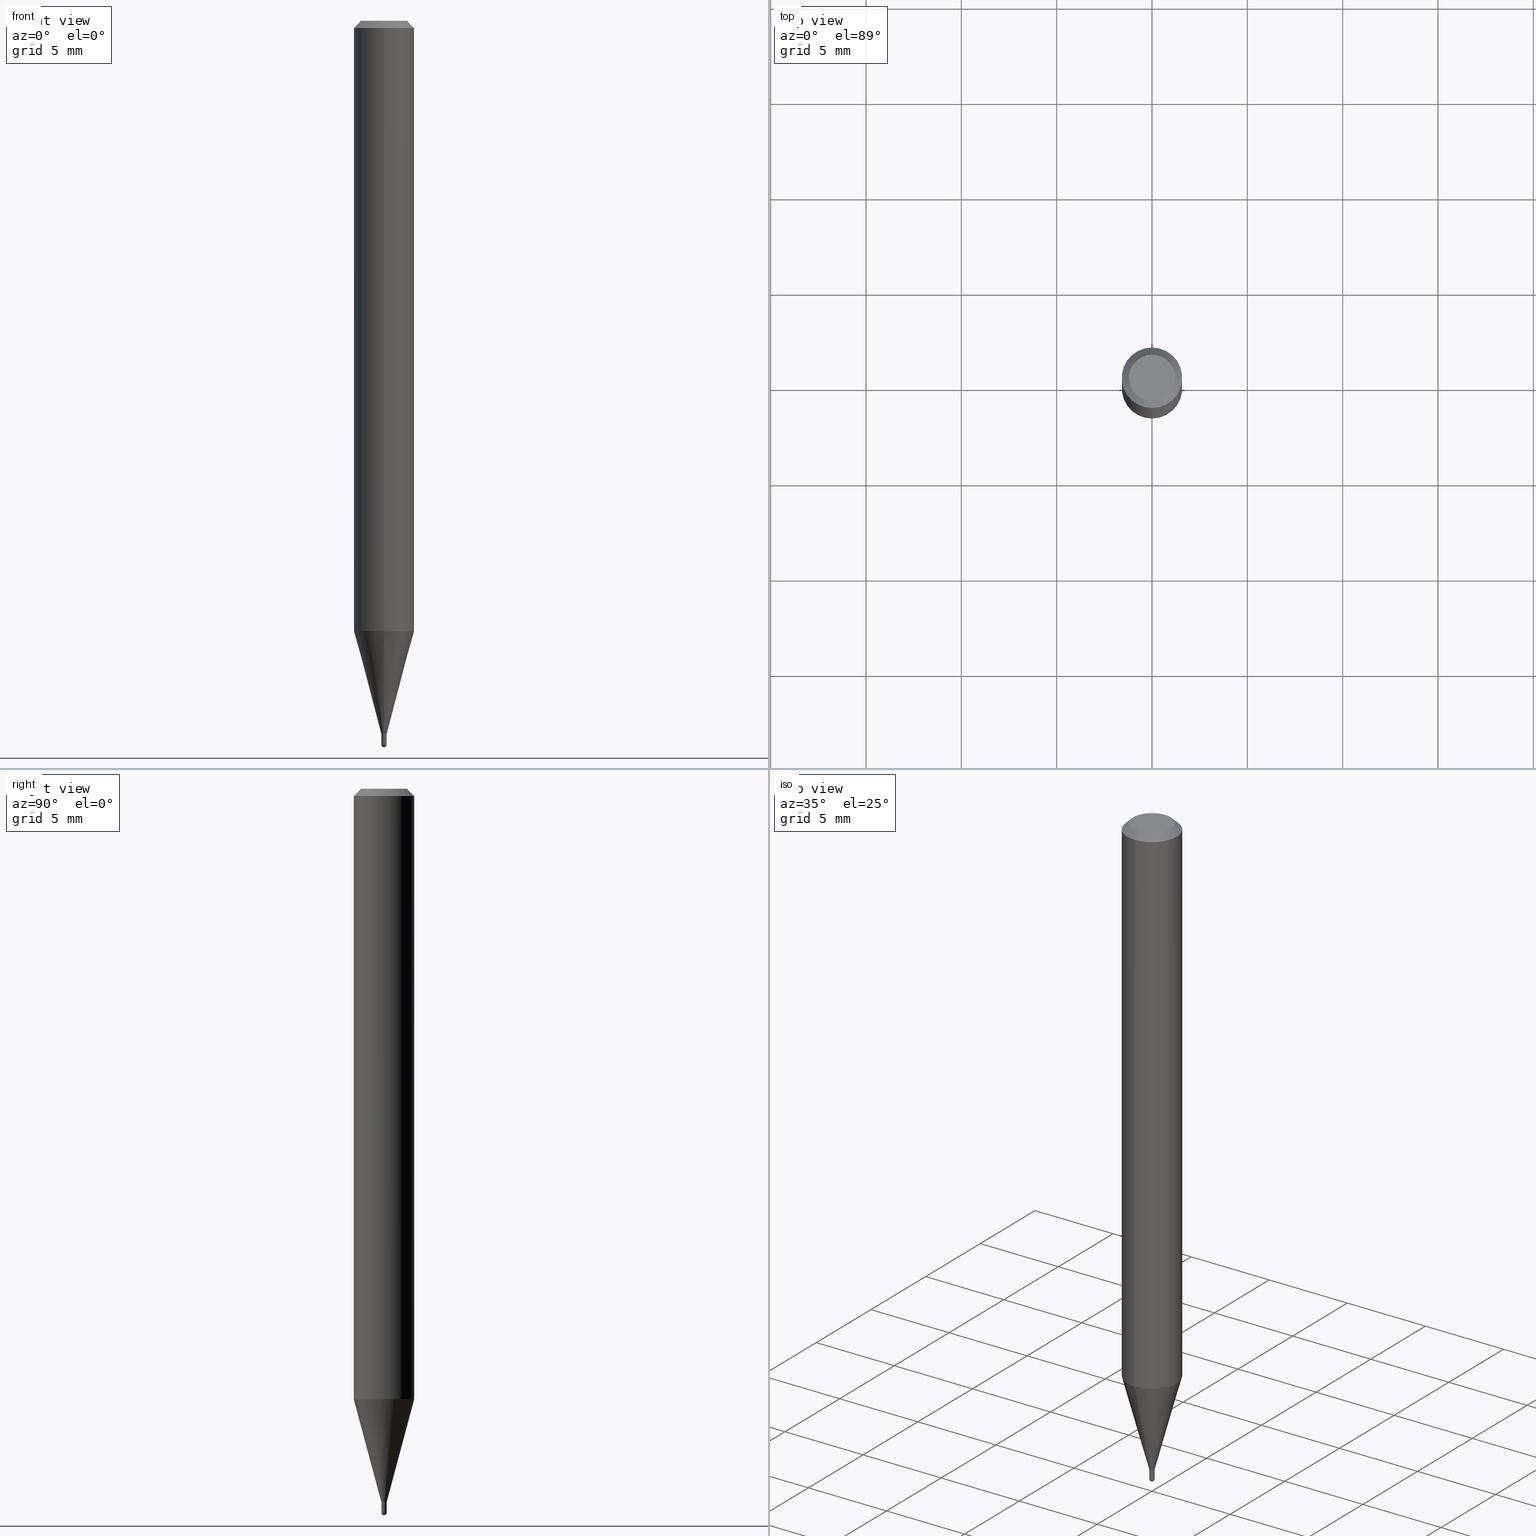
[diagram: canonical four-view strip — front | top / right | iso, engineering-drawing reading convention]
A machine part, canonical four-view strip (front | top / right | iso — engineering-drawing reading convention). The complete STEP part file that produces these views, byte-faithful:
ISO-10303-21;
HEADER;
FILE_DESCRIPTION (( 'STEP AP203' ),
    '1' );
FILE_NAME ('03035.STEP',
    '2024-03-08T18:02:09',
    ( '' ),
    ( '' ),
    'SwSTEP 2.0',
    'SolidWorks 2023',
    '' );
FILE_SCHEMA (( 'CONFIG_CONTROL_DESIGN' ));
ENDSEC;

DATA;
#1 = LINE ( 'NONE', #311, #72 ) ;
#2 = PERSON_AND_ORGANIZATION_ROLE ( 'design_supplier' ) ;
#3 = AXIS2_PLACEMENT_3D ( 'NONE', #491, #133, #374 ) ;
#4 = EDGE_LOOP ( 'NONE', ( #199, #367, #445, #131 ) ) ;
#5 = ORIENTED_EDGE ( 'NONE', *, *, #408, .T. ) ;
#6 = COORDINATED_UNIVERSAL_TIME_OFFSET ( 5, 0, .BEHIND. ) ;
#7 = ORIENTED_EDGE ( 'NONE', *, *, #48, .F. ) ;
#8 = DIRECTION ( 'NONE',  ( 1.000000000000000000, -6.982962677686247778E-15, 0.000000000000000000 ) ) ;
#9 = CIRCLE ( 'NONE', #176, 0.005499999999999922486 ) ;
#10 = ORIENTED_EDGE ( 'NONE', *, *, #457, .T. ) ;
#11 = CARTESIAN_POINT ( 'NONE',  ( -4.287811248607203282E-16, -0.06250000000000005551, -0.01499999999999954321 ) ) ;
#12 = ADVANCED_FACE ( 'NONE', ( #57 ), #96, .T. ) ;
#13 = VERTEX_POINT ( 'NONE', #219 ) ;
#14 = CARTESIAN_POINT ( 'NONE',  ( 3.602159535091854458E-29, -5.142974948539348229E-15, -1.473000000000000087 ) ) ;
#15 = ORIENTED_EDGE ( 'NONE', *, *, #77, .T. ) ;
#16 = CARTESIAN_POINT ( 'NONE',  ( 3.602159535091854458E-29, -5.142974948539348229E-15, -1.473000000000000087 ) ) ;
#17 = AXIS2_PLACEMENT_3D ( 'NONE', #101, #61, #342 ) ;
#18 = AXIS2_PLACEMENT_3D ( 'NONE', #411, #213, #170 ) ;
#19 = DIRECTION ( 'NONE',  ( -2.445457932852582401E-29, 3.491496910074235164E-15, 1.000000000000000000 ) ) ;
#20 = APPROVAL_PERSON_ORGANIZATION ( #234, #417, #152 ) ;
#21 = EDGE_CURVE ( 'NONE', #276, #475, #496, .T. ) ;
#22 = CARTESIAN_POINT ( 'NONE',  ( 0.000000000000000000, 0.000000000000000000, 0.000000000000000000 ) ) ;
#23 = CARTESIAN_POINT ( 'NONE',  ( -3.491481338839505335E-17, -0.005000000000005176519, -1.483000000000000096 ) ) ;
#24 = DIRECTION ( 'NONE',  ( -2.445457932852582401E-29, 3.491496910074235164E-15, 1.000000000000000000 ) ) ;
#25 = CARTESIAN_POINT ( 'NONE',  ( -3.840629472723789408E-17, -0.005500000000005065073, -1.473000000000000087 ) ) ;
#26 = CARTESIAN_POINT ( 'NONE',  ( 3.668186899278815115E-31, -5.237245365111268929E-17, -0.01499999999999976179 ) ) ;
#27 = AXIS2_PLACEMENT_3D ( 'NONE', #447, #444, #332 ) ;
#28 = FACE_OUTER_BOUND ( 'NONE', #165, .T. ) ;
#29 = EDGE_CURVE ( 'NONE', #322, #13, #169, .T. ) ;
#30 = CARTESIAN_POINT ( 'NONE',  ( -5.856612098317437321E-45, 8.361764383706284746E-31, 2.394893823213636661E-16 ) ) ;
#31 = EDGE_CURVE ( 'NONE', #43, #124, #202, .T. ) ;
#32 = DIRECTION ( 'NONE',  ( 1.000000000000000000, -6.982962677686265922E-15, 4.876176775795936353E-29 ) ) ;
#33 = DIRECTION ( 'NONE',  ( -6.982962677686266711E-15, -1.000000000000000000, 3.491496910074236347E-15 ) ) ;
#34 = CARTESIAN_POINT ( 'NONE',  ( 0.000000000000000000, 0.000000000000000000, 0.000000000000000000 ) ) ;
#35 = CARTESIAN_POINT ( 'NONE',  ( -4.364351673553608052E-16, -0.06250000000000439926, -1.260273103968574615 ) ) ;
#36 = CIRCLE ( 'NONE', #221, 0.005499999999999923353 ) ;
#37 = DIRECTION ( 'NONE',  ( -2.445457932852582401E-29, 3.491496910074235164E-15, 1.000000000000000000 ) ) ;
#38 = PERSON_AND_ORGANIZATION_ROLE ( 'design_owner' ) ;
#39 = LINE ( 'NONE', #356, #466 ) ;
#40 = PERSON_AND_ORGANIZATION ( #310, #130 ) ;
#41 = VECTOR ( 'NONE', #430, 39.37007874015748143 ) ;
#42 = AXIS2_PLACEMENT_3D ( 'NONE', #162, #88, #292 ) ;
#43 = VERTEX_POINT ( 'NONE', #379 ) ;
#44 = APPROVAL_STATUS ( 'not_yet_approved' ) ;
#45 = ORIENTED_EDGE ( 'NONE', *, *, #344, .T. ) ;
#46 = DIRECTION ( 'NONE',  ( -2.445457932852582401E-29, 3.491496910074235164E-15, 1.000000000000000000 ) ) ;
#47 = ORIENTED_EDGE ( 'NONE', *, *, #31, .T. ) ;
#48 = EDGE_CURVE ( 'NONE', #322, #121, #79, .T. ) ;
#49 = PLANE ( 'NONE',  #27 ) ;
#50 = CONICAL_SURFACE ( 'NONE', #279, 0.005499999999999922486, 0.2617993877991506291 ) ;
#51 = LOCAL_TIME ( 13, 2, 9.000000000000000000, #468 ) ;
#52 = ORIENTED_EDGE ( 'NONE', *, *, #432, .T. ) ;
#53 = DIRECTION ( 'NONE',  ( -2.445457932852582401E-29, 3.491496910074235164E-15, 1.000000000000000000 ) ) ;
#54 = ORIENTED_EDGE ( 'NONE', *, *, #48, .T. ) ;
#55 = FACE_OUTER_BOUND ( 'NONE', #410, .T. ) ;
#56 = EDGE_CURVE ( 'NONE', #461, #479, #339, .T. ) ;
#57 = FACE_OUTER_BOUND ( 'NONE', #431, .T. ) ;
#58 = DIRECTION ( 'NONE',  ( -2.445468806185136597E-29, 3.491481338843145583E-15, 1.000000000000000000 ) ) ;
#59 = VECTOR ( 'NONE', #46, 39.37007874015748143 ) ;
#60 = VERTEX_POINT ( 'NONE', #25 ) ;
#61 = DIRECTION ( 'NONE',  ( -2.445457932852582401E-29, 3.491496910074235164E-15, 1.000000000000000000 ) ) ;
#62 = DIRECTION ( 'NONE',  ( 2.445457932852582401E-29, -3.491496910074235164E-15, -1.000000000000000000 ) ) ;
#63 = ORIENTED_EDGE ( 'NONE', *, *, #501, .T. ) ;
#64 = DIRECTION ( 'NONE',  ( 5.024295867788190974E-15, 0.7071067811865681119, 0.7071067811865270336 ) ) ;
#65 = ORIENTED_EDGE ( 'NONE', *, *, #432, .F. ) ;
#66 = CIRCLE ( 'NONE', #231, 0.004999999999999999237 ) ;
#67 = DIRECTION ( 'NONE',  ( -2.445457932852582401E-29, 3.491496910074235164E-15, 1.000000000000000000 ) ) ;
#68 =( NAMED_UNIT ( * ) SI_UNIT ( $, .STERADIAN. ) SOLID_ANGLE_UNIT ( ) );
#69 = CARTESIAN_POINT ( 'NONE',  ( 3.602159535091854458E-29, -5.142974948539348229E-15, -1.473000000000000087 ) ) ;
#70 = DATE_TIME_ROLE ( 'classification_date' ) ;
#71 = DIRECTION ( 'NONE',  ( -6.982962677686266711E-15, -1.000000000000000000, 3.491496910074236347E-15 ) ) ;
#72 = VECTOR ( 'NONE', #350, 39.37007874015748143 ) ;
#73 = AXIS2_PLACEMENT_3D ( 'NONE', #422, #304, #383 ) ;
#74 = APPROVAL_STATUS ( 'not_yet_approved' ) ;
#75 = DIRECTION ( 'NONE',  ( -1.807323732225332900E-15, -0.2588190451025185190, 0.9659258262890689783 ) ) ;
#76 = PERSON_AND_ORGANIZATION ( #310, #130 ) ;
#77 = EDGE_CURVE ( 'NONE', #406, #261, #448, .T. ) ;
#78 = VERTEX_POINT ( 'NONE', #419 ) ;
#79 = CIRCLE ( 'NONE', #17, 0.004999999999999999237 ) ;
#80 = AXIS2_PLACEMENT_3D ( 'NONE', #338, #252, #125 ) ;
#81 = CC_DESIGN_APPROVAL ( #301, ( #326 ) ) ;
#82 = ORIENTED_EDGE ( 'NONE', *, *, #320, .T. ) ;
#83 = DIRECTION ( 'NONE',  ( 1.000000000000000000, -6.982962677686265922E-15, 4.883557194083112901E-29 ) ) ;
#84 = ORIENTED_EDGE ( 'NONE', *, *, #136, .F. ) ;
#85 = EDGE_CURVE ( 'NONE', #479, #475, #497, .T. ) ;
#86 = DIRECTION ( 'NONE',  ( -1.000000000000000000, 6.982962677686265922E-15, -4.876176775795935793E-29 ) ) ;
#87 = ORIENTED_EDGE ( 'NONE', *, *, #275, .T. ) ;
#88 = DIRECTION ( 'NONE',  ( -2.445468806185136597E-29, 3.491481338843145583E-15, 1.000000000000000000 ) ) ;
#89 = VECTOR ( 'NONE', #19, 39.37007874015748143 ) ;
#90 = ORIENTED_EDGE ( 'NONE', *, *, #346, .F. ) ;
#91 = DIRECTION ( 'NONE',  ( -6.982962677686265922E-15, -1.000000000000000000, 0.000000000000000000 ) ) ;
#92 = ORIENTED_EDGE ( 'NONE', *, *, #29, .F. ) ;
#93 = DIRECTION ( 'NONE',  ( -2.445457932852582401E-29, 3.491496910074235164E-15, 1.000000000000000000 ) ) ;
#94 = ORIENTED_EDGE ( 'NONE', *, *, #120, .T. ) ;
#95 = DIRECTION ( 'NONE',  ( -2.445468806185136597E-29, 3.491481338843145583E-15, 1.000000000000000000 ) ) ;
#96 = CONICAL_SURFACE ( 'NONE', #388, 0.06250000000000000000, 0.7853981633974483900 ) ;
#97 = AXIS2_PLACEMENT_3D ( 'NONE', #16, #327, #167 ) ;
#98 = ORIENTED_EDGE ( 'NONE', *, *, #85, .F. ) ;
#99 = CC_DESIGN_APPROVAL ( #417, ( #102 ) ) ;
#100 = ADVANCED_FACE ( 'NONE', ( #463 ), #182, .T. ) ;
#101 = CARTESIAN_POINT ( 'NONE',  ( 3.626614114420379901E-29, -5.177889917640090482E-15, -1.483000000000000096 ) ) ;
#102 = PRODUCT_DEFINITION ( 'UNKNOWN', '', #326, #123 ) ;
#103 = APPLICATION_PROTOCOL_DEFINITION ( 'international standard', 'config_control_design', 1994, #155 ) ;
#104 = ORIENTED_EDGE ( 'NONE', *, *, #136, .T. ) ;
#105 = CARTESIAN_POINT ( 'NONE',  ( 3.081944859660698736E-29, -4.400239648355943616E-15, -1.260273103968574837 ) ) ;
#106 = APPROVAL_PERSON_ORGANIZATION ( #40, #465, #111 ) ;
#107 = CARTESIAN_POINT ( 'NONE',  ( 3.840629472727447874E-16, 0.04749999999999999362, 7.364327909283752044E-17 ) ) ;
#108 = CARTESIAN_POINT ( 'NONE',  ( 0.000000000000000000, 0.000000000000000000, 0.000000000000000000 ) ) ;
#109 = CALENDAR_DATE ( 2024, 8, 3 ) ;
#110 = DIRECTION ( 'NONE',  ( -2.445457932852582401E-29, 3.491496910074235164E-15, 1.000000000000000000 ) ) ;
#111 = APPROVAL_ROLE ( '' ) ;
#112 = CARTESIAN_POINT ( 'NONE',  ( 3.907985046684152439E-17, 0.005499999999994708774, -1.494500000000000162 ) ) ;
#113 = VECTOR ( 'NONE', #75, 39.37007874015748854 ) ;
#114 = CIRCLE ( 'NONE', #289, 0.005499999999999923353 ) ;
#115 = EDGE_LOOP ( 'NONE', ( #285, #45, #216, #161 ) ) ;
#116 = ORIENTED_EDGE ( 'NONE', *, *, #346, .T. ) ;
#117 = AXIS2_PLACEMENT_3D ( 'NONE', #455, #460, #171 ) ;
#118 = CIRCLE ( 'NONE', #97, 0.005499999999999922486 ) ;
#119 = CARTESIAN_POINT ( 'NONE',  ( 3.626630239572558053E-29, -5.177866825504385478E-15, -1.483000000000000096 ) ) ;
#120 = EDGE_CURVE ( 'NONE', #60, #477, #9, .T. ) ;
#121 = VERTEX_POINT ( 'NONE', #435 ) ;
#122 = CARTESIAN_POINT ( 'NONE',  ( 3.907985046684109298E-17, 0.005499999999994729591, -1.482500000000000151 ) ) ;
#123 = DESIGN_CONTEXT ( 'detailed design', #337, 'design' ) ;
#124 = VERTEX_POINT ( 'NONE', #180 ) ;
#125 = DIRECTION ( 'NONE',  ( -6.982962677686265922E-15, -1.000000000000000000, 3.483106191921935554E-15 ) ) ;
#126 = EDGE_LOOP ( 'NONE', ( #94, #63, #421, #84 ) ) ;
#127 = FACE_OUTER_BOUND ( 'NONE', #458, .T. ) ;
#128 = VECTOR ( 'NONE', #217, 39.37007874015748143 ) ;
#129 = CONICAL_SURFACE ( 'NONE', #403, 0.005499999999999922486, 0.2617993877991506291 ) ;
#130 = ORGANIZATION ( 'UNSPECIFIED', 'UNSPECIFIED', '' ) ;
#131 = ORIENTED_EDGE ( 'NONE', *, *, #191, .F. ) ;
#132 = EDGE_CURVE ( 'NONE', #443, #477, #1, .T. ) ;
#133 = DIRECTION ( 'NONE',  ( -2.445457932852582401E-29, 3.491496910074235164E-15, 1.000000000000000000 ) ) ;
#134 = CARTESIAN_POINT ( 'NONE',  ( 3.668186899278815115E-31, -5.237245365111268929E-17, -0.01499999999999976179 ) ) ;
#135 = FACE_OUTER_BOUND ( 'NONE', #4, .T. ) ;
#136 = EDGE_CURVE ( 'NONE', #60, #276, #267, .T. ) ;
#137 = ORIENTED_EDGE ( 'NONE', *, *, #29, .T. ) ;
#138 = CARTESIAN_POINT ( 'NONE',  ( 3.626614114420379901E-29, -5.177889917640090482E-15, -1.483000000000000096 ) ) ;
#139 = CC_DESIGN_DATE_AND_TIME_ASSIGNMENT ( #360, #197, ( #102 ) ) ;
#140 = AXIS2_PLACEMENT_3D ( 'NONE', #343, #62, #378 ) ;
#141 = DIRECTION ( 'NONE',  ( 1.000000000000000000, -6.982962677686247778E-15, 0.000000000000000000 ) ) ;
#142 = ORIENTED_EDGE ( 'NONE', *, *, #457, .F. ) ;
#143 = CARTESIAN_POINT ( 'NONE',  ( 4.440892098500935790E-16, 0.06249999999999995143, -0.01499999999999997863 ) ) ;
#144 = DIRECTION ( 'NONE',  ( -2.445457932852582401E-29, 3.491496910074235164E-15, 1.000000000000000000 ) ) ;
#145 = DIRECTION ( 'NONE',  ( 7.105427357601001070E-15, 1.000000000000000000, 0.000000000000000000 ) ) ;
#146 = AXIS2_PLACEMENT_3D ( 'NONE', #26, #177, #299 ) ;
#147 = CARTESIAN_POINT ( 'NONE',  ( 3.654282789384638190E-29, -5.218692416640612921E-15, -1.494500000000000162 ) ) ;
#148 = AXIS2_PLACEMENT_3D ( 'NONE', #503, #144, #33 ) ;
#149 = CARTESIAN_POINT ( 'NONE',  ( -4.364351673553912750E-16, -0.06250000000000005551, -0.01499999999999954321 ) ) ;
#150 = CARTESIAN_POINT ( 'NONE',  ( 3.625391385453952956E-29, -5.176144169185053606E-15, -1.482500000000000151 ) ) ;
#151 = DIRECTION ( 'NONE',  ( -2.445457932852582401E-29, 3.491496910074235164E-15, 1.000000000000000000 ) ) ;
#152 = APPROVAL_ROLE ( '' ) ;
#153 = DIRECTION ( 'NONE',  ( -2.445468806185136877E-29, 3.491481338843145188E-15, 1.000000000000000000 ) ) ;
#154 = AXIS2_PLACEMENT_3D ( 'NONE', #108, #506, #382 ) ;
#155 = APPLICATION_CONTEXT ( 'configuration controlled 3d designs of mechanical parts and assemblies' ) ;
#156 = ORIENTED_EDGE ( 'NONE', *, *, #320, .F. ) ;
#157 = VERTEX_POINT ( 'NONE', #469 ) ;
#158 = ORIENTED_EDGE ( 'NONE', *, *, #501, .F. ) ;
#159 = CIRCLE ( 'NONE', #381, 0.005499999999999997946 ) ;
#160 = DIRECTION ( 'NONE',  ( -2.445457932852582401E-29, 3.491496910074235164E-15, 1.000000000000000000 ) ) ;
#161 = ORIENTED_EDGE ( 'NONE', *, *, #408, .F. ) ;
#162 = CARTESIAN_POINT ( 'NONE',  ( 3.654753130843686882E-29, -5.218018860901081637E-15, -1.494500000000000162 ) ) ;
#163 = ORIENTED_EDGE ( 'NONE', *, *, #183, .T. ) ;
#164 = CARTESIAN_POINT ( 'NONE',  ( -3.840629472723740105E-17, -0.005500000000005144871, -1.494500000000000162 ) ) ;
#165 = EDGE_LOOP ( 'NONE', ( #142, #278, #90, #65 ) ) ;
#166 = CC_DESIGN_PERSON_AND_ORGANIZATION_ASSIGNMENT ( #232, #390, ( #326 ) ) ;
#167 = DIRECTION ( 'NONE',  ( -6.982962677686265922E-15, -1.000000000000000000, 0.000000000000000000 ) ) ;
#168 = CLOSED_SHELL ( 'NONE', ( #100, #385, #358, #511, #452 ) ) ;
#169 = LINE ( 'NONE', #23, #288 ) ;
#170 = DIRECTION ( 'NONE',  ( -6.982962677686265922E-15, -1.000000000000000000, 0.000000000000000000 ) ) ;
#171 = DIRECTION ( 'NONE',  ( 1.000000000000000000, -6.982962677686245411E-15, 0.000000000000000000 ) ) ;
#172 = DIRECTION ( 'NONE',  ( -6.982962677686265922E-15, -1.000000000000000000, 0.000000000000000000 ) ) ;
#173 = EDGE_CURVE ( 'NONE', #157, #276, #473, .T. ) ;
#174 = CARTESIAN_POINT ( 'NONE',  ( 3.654753130843686882E-29, -5.218018860901081637E-15, -1.494500000000000162 ) ) ;
#175 = DIRECTION ( 'NONE',  ( 1.000000000000000000, -7.105427357601001070E-15, 4.926315508542082329E-29 ) ) ;
#176 = AXIS2_PLACEMENT_3D ( 'NONE', #222, #348, #474 ) ;
#177 = DIRECTION ( 'NONE',  ( -2.445457932852582401E-29, 3.491496910074235164E-15, 1.000000000000000000 ) ) ;
#178 = LOCAL_TIME ( 13, 2, 9.000000000000000000, #6 ) ;
#179 = SPHERICAL_SURFACE ( 'NONE', #73, 0.005499999999999853964 ) ;
#180 = CARTESIAN_POINT ( 'NONE',  ( -0.005499999999999999681, -5.158862992735928801E-15, -1.483000000000000096 ) ) ;
#181 =( LENGTH_UNIT ( ) NAMED_UNIT ( * ) SI_UNIT ( $, .METRE. ) );
#182 = CYLINDRICAL_SURFACE ( 'NONE', #414, 0.005499999999999999681 ) ;
#183 = EDGE_CURVE ( 'NONE', #261, #43, #425, .T. ) ;
#184 = CYLINDRICAL_SURFACE ( 'NONE', #434, 0.06250000000000000000 ) ;
#185 = CARTESIAN_POINT ( 'NONE',  ( 3.626614114420379901E-29, -5.177889917640090482E-15, -1.483000000000000096 ) ) ;
#186 = AXIS2_PLACEMENT_3D ( 'NONE', #386, #227, #220 ) ;
#187 = SECURITY_CLASSIFICATION_LEVEL ( 'unclassified' ) ;
#188 = CARTESIAN_POINT ( 'NONE',  ( 3.667497697089131858E-29, -5.238232341874015890E-15, -1.500000000000000222 ) ) ;
#189 = PRODUCT_DEFINITION_SHAPE ( 'NONE', 'NONE',  #102 ) ;
#190 = APPROVAL_DATE_TIME ( #433, #417 ) ;
#191 = EDGE_CURVE ( 'NONE', #13, #60, #389, .T. ) ;
#192 = CARTESIAN_POINT ( 'NONE',  ( 3.654753130843686882E-29, -5.218018860901081637E-15, -1.494500000000000162 ) ) ;
#193 = APPROVAL_DATE_TIME ( #274, #465 ) ;
#194 = AXIS2_PLACEMENT_3D ( 'NONE', #256, #175, #145 ) ;
#195 = DATE_AND_TIME ( #429, #215 ) ;
#196 = ORIENTED_EDGE ( 'NONE', *, *, #173, .T. ) ;
#197 = DATE_TIME_ROLE ( 'creation_date' ) ;
#198 = DIMENSIONAL_EXPONENTS ( 1.000000000000000000, 0.000000000000000000, 0.000000000000000000, 0.000000000000000000, 0.000000000000000000, 0.000000000000000000, 0.000000000000000000 ) ;
#199 = ORIENTED_EDGE ( 'NONE', *, *, #243, .T. ) ;
#200 = CYLINDRICAL_SURFACE ( 'NONE', #3, 0.06250000000000000000 ) ;
#201 = ORIENTED_EDGE ( 'NONE', *, *, #409, .F. ) ;
#202 = CIRCLE ( 'NONE', #117, 0.005499999999999999681 ) ;
#203 = CARTESIAN_POINT ( 'NONE',  ( -3.491481338839505335E-17, -0.005000000000005176519, -1.483000000000000096 ) ) ;
#204 = EDGE_CURVE ( 'NONE', #416, #461, #440, .T. ) ;
#205 = ORIENTED_EDGE ( 'NONE', *, *, #56, .T. ) ;
#206 = DIRECTION ( 'NONE',  ( -6.982962677686265922E-15, -1.000000000000000000, 0.000000000000000000 ) ) ;
#207 = UNCERTAINTY_MEASURE_WITH_UNIT (LENGTH_MEASURE( 1.000000000000000082E-05 ), #349, 'distance_accuracy_value', 'NONE');
#208 = PRODUCT_RELATED_PRODUCT_CATEGORY ( 'detail', '', ( #483 ) ) ;
#209 = ORIENTED_EDGE ( 'NONE', *, *, #173, .F. ) ;
#210 = FACE_OUTER_BOUND ( 'NONE', #329, .T. ) ;
#211 = CARTESIAN_POINT ( 'NONE',  ( -4.364351673553916201E-16, -0.06250000000000000000, 2.182185568796396731E-16 ) ) ;
#212 = AXIS2_PLACEMENT_3D ( 'NONE', #30, #67, #71 ) ;
#213 = DIRECTION ( 'NONE',  ( -2.445457932852582401E-29, 3.491496910074235164E-15, 1.000000000000000000 ) ) ;
#214 = AXIS2_PLACEMENT_3D ( 'NONE', #34, #95, #32 ) ;
#215 = LOCAL_TIME ( 13, 2, 9.000000000000000000, #395 ) ;
#216 = ORIENTED_EDGE ( 'NONE', *, *, #191, .T. ) ;
#217 = DIRECTION ( 'NONE',  ( 4.937700262164548042E-15, 0.7071067811865451302, -0.7071067811865499042 ) ) ;
#218 = CARTESIAN_POINT ( 'NONE',  ( 2.415845301584673606E-16, 0.005499999999994779898, -1.473000000000000087 ) ) ;
#219 = CARTESIAN_POINT ( 'NONE',  ( -3.840629472723779548E-17, -0.005500000000005117115, -1.482500000000000151 ) ) ;
#220 = DIRECTION ( 'NONE',  ( -6.982962677686265922E-15, -1.000000000000000000, 4.370956789862821150E-15 ) ) ;
#221 = AXIS2_PLACEMENT_3D ( 'NONE', #488, #160, #91 ) ;
#222 = CARTESIAN_POINT ( 'NONE',  ( 3.602159535091854458E-29, -5.142974948539348229E-15, -1.473000000000000087 ) ) ;
#223 = AXIS2_PLACEMENT_3D ( 'NONE', #420, #502, #224 ) ;
#224 = DIRECTION ( 'NONE',  ( 1.000000000000000000, 0.000000000000000000, 0.000000000000000000 ) ) ;
#225 = CC_DESIGN_DATE_AND_TIME_ASSIGNMENT ( #195, #70, ( #373 ) ) ;
#226 = DIRECTION ( 'NONE',  ( -2.445457932852582401E-29, 3.491496910074235164E-15, 1.000000000000000000 ) ) ;
#227 = DIRECTION ( 'NONE',  ( -2.445457932852582401E-29, 3.491496910074235164E-15, 1.000000000000000000 ) ) ;
#228 = DIRECTION ( 'NONE',  ( -2.445468806185136597E-29, 3.491481338843145583E-15, 1.000000000000000000 ) ) ;
#229 = SHAPE_DEFINITION_REPRESENTATION ( #189, #273 ) ;
#230 = DIRECTION ( 'NONE',  ( -6.982962677686265922E-15, -1.000000000000000000, 0.000000000000000000 ) ) ;
#231 = AXIS2_PLACEMENT_3D ( 'NONE', #185, #151, #509 ) ;
#232 = PERSON_AND_ORGANIZATION ( #310, #130 ) ;
#233 = DIRECTION ( 'NONE',  ( -6.982962677686265922E-15, -1.000000000000000000, 4.370956789862821150E-15 ) ) ;
#234 = PERSON_AND_ORGANIZATION ( #310, #130 ) ;
#235 = ORIENTED_EDGE ( 'NONE', *, *, #21, .F. ) ;
#236 = VECTOR ( 'NONE', #399, 39.37007874015748143 ) ;
#237 = AXIS2_PLACEMENT_3D ( 'NONE', #192, #307, #467 ) ;
#238 = COORDINATED_UNIVERSAL_TIME_OFFSET ( 5, 0, .BEHIND. ) ;
#239 = APPROVAL_PERSON_ORGANIZATION ( #476, #301, #317 ) ;
#240 = VERTEX_POINT ( 'NONE', #188 ) ;
#241 = CARTESIAN_POINT ( 'NONE',  ( 4.440892098500625669E-16, 0.06250000000000000000, -2.182185568796396731E-16 ) ) ;
#242 = EDGE_LOOP ( 'NONE', ( #54, #333, #298, #92 ) ) ;
#243 = EDGE_CURVE ( 'NONE', #13, #443, #114, .T. ) ;
#244 = FACE_OUTER_BOUND ( 'NONE', #126, .T. ) ;
#245 = VERTEX_POINT ( 'NONE', #112 ) ;
#246 = AXIS2_PLACEMENT_3D ( 'NONE', #105, #110, #233 ) ;
#247 = ADVANCED_FACE ( 'NONE', ( #387 ), #384, .T. ) ;
#248 = AXIS2_PLACEMENT_3D ( 'NONE', #138, #24, #172 ) ;
#249 = DIRECTION ( 'NONE',  ( 2.438088387897960049E-29, -3.491481338843145188E-15, -1.000000000000000000 ) ) ;
#250 = EDGE_CURVE ( 'NONE', #461, #416, #490, .T. ) ;
#251 = ORIENTED_EDGE ( 'NONE', *, *, #77, .F. ) ;
#252 = DIRECTION ( 'NONE',  ( -2.445457932852582401E-29, 3.491496910074235164E-15, 1.000000000000000000 ) ) ;
#253 = ORIENTED_EDGE ( 'NONE', *, *, #282, .F. ) ;
#254 = CARTESIAN_POINT ( 'NONE',  ( 3.654753130843686882E-29, -5.218018860901081637E-15, -1.494500000000000162 ) ) ;
#255 = EDGE_LOOP ( 'NONE', ( #52, #82, #370, #449, #324 ) ) ;
#256 = CARTESIAN_POINT ( 'NONE',  ( 3.654282789384638190E-29, -5.218692416640612921E-15, -1.494500000000000162 ) ) ;
#257 = AXIS2_PLACEMENT_3D ( 'NONE', #330, #286, #407 ) ;
#258 = EDGE_LOOP ( 'NONE', ( #398, #291, #137, #412 ) ) ;
#259 = DIRECTION ( 'NONE',  ( -2.445468806185136597E-29, 3.491481338843145583E-15, 1.000000000000000000 ) ) ;
#260 = MECHANICAL_CONTEXT ( 'NONE', #155, 'mechanical' ) ;
#261 = VERTEX_POINT ( 'NONE', #428 ) ;
#262 = EDGE_CURVE ( 'NONE', #240, #406, #297, .T. ) ;
#263 = EDGE_CURVE ( 'NONE', #261, #245, #325, .T. ) ;
#264 = VECTOR ( 'NONE', #269, 39.37007874015748143 ) ;
#265 = AXIS2_PLACEMENT_3D ( 'NONE', #147, #281, #230 ) ;
#266 = CARTESIAN_POINT ( 'NONE',  ( -3.840629472723789408E-17, -0.005500000000005065073, -1.473000000000000087 ) ) ;
#267 = LINE ( 'NONE', #266, #113 ) ;
#268 = PERSON_AND_ORGANIZATION ( #310, #130 ) ;
#269 = DIRECTION ( 'NONE',  ( -2.445468806185136877E-29, 3.491481338843145188E-15, 1.000000000000000000 ) ) ;
#270 = ADVANCED_FACE ( 'NONE', ( #352 ), #50, .T. ) ;
#271 = PERSON_AND_ORGANIZATION_ROLE ( 'creator' ) ;
#272 = DIRECTION ( 'NONE',  ( 1.000000000000000000, -6.982962677686265922E-15, 4.876176775795936353E-29 ) ) ;
#273 = ADVANCED_BREP_SHAPE_REPRESENTATION ( '03035', ( #499, #318, #223 ), #424 ) ;
#274 = DATE_AND_TIME ( #355, #316 ) ;
#275 = EDGE_CURVE ( 'NONE', #124, #43, #305, .T. ) ;
#276 = VERTEX_POINT ( 'NONE', #35 ) ;
#277 = PERSON_AND_ORGANIZATION ( #310, #130 ) ;
#278 = ORIENTED_EDGE ( 'NONE', *, *, #262, .T. ) ;
#279 = AXIS2_PLACEMENT_3D ( 'NONE', #69, #37, #354 ) ;
#280 = CC_DESIGN_APPROVAL ( #465, ( #373 ) ) ;
#281 = DIRECTION ( 'NONE',  ( -1.000000000000000000, 6.982962677686265922E-15, -4.883557194083112340E-29 ) ) ;
#282 = EDGE_CURVE ( 'NONE', #121, #322, #66, .T. ) ;
#283 = EDGE_LOOP ( 'NONE', ( #201, #196, #375, #98 ) ) ;
#284 = LINE ( 'NONE', #456, #372 ) ;
#285 = ORIENTED_EDGE ( 'NONE', *, *, #132, .F. ) ;
#286 = DIRECTION ( 'NONE',  ( 2.445457932852581841E-29, -3.491496910074235164E-15, -1.000000000000000000 ) ) ;
#287 = ORIENTED_EDGE ( 'NONE', *, *, #85, .T. ) ;
#288 = VECTOR ( 'NONE', #336, 39.37007874015748143 ) ;
#289 = AXIS2_PLACEMENT_3D ( 'NONE', #150, #226, #470 ) ;
#290 = PLANE ( 'NONE',  #478 ) ;
#291 = ORIENTED_EDGE ( 'NONE', *, *, #282, .T. ) ;
#292 = DIRECTION ( 'NONE',  ( 1.000000000000000000, -6.982962677686247778E-15, 0.000000000000000000 ) ) ;
#293 = DIRECTION ( 'NONE',  ( 2.445457932852582401E-29, -3.491496910074235164E-15, -1.000000000000000000 ) ) ;
#294 = LINE ( 'NONE', #241, #59 ) ;
#295 = CARTESIAN_POINT ( 'NONE',  ( 4.364351673553919652E-16, 0.06249999999999995143, -0.01499999999999997863 ) ) ;
#296 = FACE_OUTER_BOUND ( 'NONE', #396, .T. ) ;
#297 = CIRCLE ( 'NONE', #265, 0.005499999999999853964 ) ;
#298 = ORIENTED_EDGE ( 'NONE', *, *, #243, .F. ) ;
#299 = DIRECTION ( 'NONE',  ( -6.982962677686265922E-15, -1.000000000000000000, 3.483106191921935554E-15 ) ) ;
#300 = CC_DESIGN_PERSON_AND_ORGANIZATION_ASSIGNMENT ( #268, #2, ( #326 ) ) ;
#301 = APPROVAL ( #74, 'UNSPECIFIED' ) ;
#302 = CARTESIAN_POINT ( 'NONE',  ( 3.907985046684097588E-17, 0.005499999999994779898, -1.473000000000000087 ) ) ;
#303 = CARTESIAN_POINT ( 'NONE',  ( 0.005499999999999999681, -3.840629472727445902E-17, 2.681897226687764826E-31 ) ) ;
#304 = DIRECTION ( 'NONE',  ( 1.000000000000000000, -6.982962677686265922E-15, 4.883557194083112901E-29 ) ) ;
#305 = CIRCLE ( 'NONE', #450, 0.005499999999999999681 ) ;
#306 = LOCAL_TIME ( 13, 2, 9.000000000000000000, #308 ) ;
#307 = DIRECTION ( 'NONE',  ( -2.445468806185136597E-29, 3.491481338843145583E-15, 1.000000000000000000 ) ) ;
#308 = COORDINATED_UNIVERSAL_TIME_OFFSET ( 5, 0, .BEHIND. ) ;
#309 = DIRECTION ( 'NONE',  ( -2.445468806185136597E-29, 3.491481338843145583E-15, 1.000000000000000000 ) ) ;
#310 = PERSON ( 'UNSPECIFIED', 'UNSPECIFIED', 'UNSPECIFIED', ('UNSPECIFIED'), ('UNSPECIFIED'), ('UNSPECIFIED') ) ;
#311 = CARTESIAN_POINT ( 'NONE',  ( 3.907985046680495329E-17, 0.005499999999999922486, -1.920323300540802100E-17 ) ) ;
#312 = DATE_AND_TIME ( #109, #51 ) ;
#313 = AXIS2_PLACEMENT_3D ( 'NONE', #174, #259, #141 ) ;
#314 = FACE_OUTER_BOUND ( 'NONE', #494, .T. ) ;
#315 = VECTOR ( 'NONE', #426, 39.37007874015748143 ) ;
#316 = LOCAL_TIME ( 13, 2, 9.000000000000000000, #238 ) ;
#317 = APPROVAL_ROLE ( '' ) ;
#318 = MANIFOLD_SOLID_BREP ( 'Body-Move/Copy2[2]', #371 ) ;
#319 = ORIENTED_EDGE ( 'NONE', *, *, #275, .F. ) ;
#320 = EDGE_CURVE ( 'NONE', #78, #124, #39, .T. ) ;
#321 = ADVANCED_FACE ( 'NONE', ( #314 ), #49, .F. ) ;
#322 = VERTEX_POINT ( 'NONE', #203 ) ;
#323 = EDGE_CURVE ( 'NONE', #475, #479, #357, .T. ) ;
#324 = ORIENTED_EDGE ( 'NONE', *, *, #263, .T. ) ;
#325 = CIRCLE ( 'NONE', #237, 0.005499999999999997946 ) ;
#326 = PRODUCT_DEFINITION_FORMATION_WITH_SPECIFIED_SOURCE ( 'ANY', '', #483, .NOT_KNOWN. ) ;
#327 = DIRECTION ( 'NONE',  ( -2.445457932852582401E-29, 3.491496910074235164E-15, 1.000000000000000000 ) ) ;
#328 = CC_DESIGN_PERSON_AND_ORGANIZATION_ASSIGNMENT ( #277, #271, ( #102 ) ) ;
#329 = EDGE_LOOP ( 'NONE', ( #453, #492 ) ) ;
#330 = CARTESIAN_POINT ( 'NONE',  ( 3.316907271900976096E-16, 0.04749999999999999362, -4.610141206784431876E-17 ) ) ;
#331 = ORIENTED_EDGE ( 'NONE', *, *, #250, .F. ) ;
#332 = DIRECTION ( 'NONE',  ( -6.982962677686265922E-15, -1.000000000000000000, 3.491496910074235164E-15 ) ) ;
#333 = ORIENTED_EDGE ( 'NONE', *, *, #446, .T. ) ;
#334 = AXIS2_PLACEMENT_3D ( 'NONE', #22, #53, #451 ) ;
#335 = FACE_OUTER_BOUND ( 'NONE', #489, .T. ) ;
#336 = DIRECTION ( 'NONE',  ( -4.937700262164674260E-15, -0.7071067811865632269, 0.7071067811865319186 ) ) ;
#337 = APPLICATION_CONTEXT ( 'configuration controlled 3d designs of mechanical parts and assemblies' ) ;
#338 = CARTESIAN_POINT ( 'NONE',  ( 3.668186899278815115E-31, -5.237245365111268929E-17, -0.01499999999999976179 ) ) ;
#339 = LINE ( 'NONE', #295, #128 ) ;
#340 = LINE ( 'NONE', #302, #315 ) ;
#341 = EDGE_CURVE ( 'NONE', #416, #475, #366, .T. ) ;
#342 = DIRECTION ( 'NONE',  ( -6.982962677686265922E-15, -1.000000000000000000, 0.000000000000000000 ) ) ;
#343 = CARTESIAN_POINT ( 'NONE',  ( 3.668186899278815115E-31, -5.237245365111268929E-17, -0.01499999999999976179 ) ) ;
#344 = EDGE_CURVE ( 'NONE', #443, #13, #36, .T. ) ;
#345 = ORIENTED_EDGE ( 'NONE', *, *, #341, .T. ) ;
#346 = EDGE_CURVE ( 'NONE', #78, #406, #498, .T. ) ;
#347 =( NAMED_UNIT ( * ) PLANE_ANGLE_UNIT ( ) SI_UNIT ( $, .RADIAN. ) );
#348 = DIRECTION ( 'NONE',  ( -2.445457932852582401E-29, 3.491496910074235164E-15, 1.000000000000000000 ) ) ;
#349 =( CONVERSION_BASED_UNIT ( 'INCH', #508 ) LENGTH_UNIT ( ) NAMED_UNIT ( #198 ) );
#350 = DIRECTION ( 'NONE',  ( -2.445457932852582401E-29, 3.491496910074235164E-15, 1.000000000000000000 ) ) ;
#351 = DIRECTION ( 'NONE',  ( -6.982962677686265922E-15, -1.000000000000000000, 3.491496910074234769E-15 ) ) ;
#352 = FACE_OUTER_BOUND ( 'NONE', #377, .T. ) ;
#353 = APPROVAL_DATE_TIME ( #312, #301 ) ;
#354 = DIRECTION ( 'NONE',  ( -6.982962677686265922E-15, -1.000000000000000000, 0.000000000000000000 ) ) ;
#355 = CALENDAR_DATE ( 2024, 8, 3 ) ;
#356 = CARTESIAN_POINT ( 'NONE',  ( -0.005499999999999999681, 3.907985046680550795E-17, -2.705414299640198099E-31 ) ) ;
#357 = CIRCLE ( 'NONE', #80, 0.06250000000000000000 ) ;
#358 = ADVANCED_FACE ( 'NONE', ( #127 ), #290, .F. ) ;
#359 = EDGE_LOOP ( 'NONE', ( #156, #116, #15, #163, #319 ) ) ;
#360 = DATE_AND_TIME ( #510, #178 ) ;
#361 = ORIENTED_EDGE ( 'NONE', *, *, #341, .F. ) ;
#362 = ADVANCED_FACE ( 'NONE', ( #210 ), #484, .F. ) ;
#363 = DIRECTION ( 'NONE',  ( -6.982962677686265922E-15, -1.000000000000000000, 0.000000000000000000 ) ) ;
#364 = ORIENTED_EDGE ( 'NONE', *, *, #204, .F. ) ;
#365 = CONICAL_SURFACE ( 'NONE', #140, 0.06250000000000000000, 0.7853981633974483900 ) ;
#366 = LINE ( 'NONE', #11, #236 ) ;
#367 = ORIENTED_EDGE ( 'NONE', *, *, #132, .T. ) ;
#368 = CARTESIAN_POINT ( 'NONE',  ( -3.773273898774340269E-16, -0.04749999999999999362, 4.053354855498898610E-16 ) ) ;
#369 = ORIENTED_EDGE ( 'NONE', *, *, #409, .T. ) ;
#370 = ORIENTED_EDGE ( 'NONE', *, *, #31, .F. ) ;
#371 = CLOSED_SHELL ( 'NONE', ( #393, #436, #12, #413, #427, #270, #504, #487, #362, #321, #481, #247 ) ) ;
#372 = VECTOR ( 'NONE', #64, 39.37007874015748143 ) ;
#373 = SECURITY_CLASSIFICATION ( '', '', #187 ) ;
#374 = DIRECTION ( 'NONE',  ( -6.982962677686265922E-15, -1.000000000000000000, 3.491496910074234769E-15 ) ) ;
#375 = ORIENTED_EDGE ( 'NONE', *, *, #21, .T. ) ;
#376 = CYLINDRICAL_SURFACE ( 'NONE', #214, 0.005499999999999999681 ) ;
#377 = EDGE_LOOP ( 'NONE', ( #158, #5, #104, #209 ) ) ;
#378 = DIRECTION ( 'NONE',  ( 6.982962677686265922E-15, 1.000000000000000000, -3.483106191921935554E-15 ) ) ;
#379 = CARTESIAN_POINT ( 'NONE',  ( 0.005499999999999999681, -5.216273120231659345E-15, -1.483000000000000096 ) ) ;
#380 = CARTESIAN_POINT ( 'NONE',  ( 0.000000000000000000, 0.000000000000000000, 0.000000000000000000 ) ) ;
#381 = AXIS2_PLACEMENT_3D ( 'NONE', #254, #58, #8 ) ;
#382 = DIRECTION ( 'NONE',  ( -6.982962677686265922E-15, -1.000000000000000000, 3.491496910074234769E-15 ) ) ;
#383 = DIRECTION ( 'NONE',  ( -6.982962677686265922E-15, -1.000000000000000000, 0.000000000000000000 ) ) ;
#384 = CYLINDRICAL_SURFACE ( 'NONE', #154, 0.005499999999999922486 ) ;
#385 = ADVANCED_FACE ( 'NONE', ( #55 ), #493, .T. ) ;
#386 = CARTESIAN_POINT ( 'NONE',  ( 3.081944859660698736E-29, -4.400239648355943616E-15, -1.260273103968574837 ) ) ;
#387 = FACE_OUTER_BOUND ( 'NONE', #115, .T. ) ;
#388 = AXIS2_PLACEMENT_3D ( 'NONE', #134, #293, #500 ) ;
#389 = LINE ( 'NONE', #391, #41 ) ;
#390 = PERSON_AND_ORGANIZATION_ROLE ( 'creator' ) ;
#391 = CARTESIAN_POINT ( 'NONE',  ( -3.840629472727392284E-17, -0.005499999999999922486, 1.920323300540802100E-17 ) ) ;
#392 = APPLICATION_PROTOCOL_DEFINITION ( 'international standard', 'config_control_design', 1994, #337 ) ;
#393 = ADVANCED_FACE ( 'NONE', ( #135 ), #401, .T. ) ;
#394 = CC_DESIGN_PERSON_AND_ORGANIZATION_ASSIGNMENT ( #472, #38, ( #483 ) ) ;
#395 = COORDINATED_UNIVERSAL_TIME_OFFSET ( 5, 0, .BEHIND. ) ;
#396 = EDGE_LOOP ( 'NONE', ( #361, #331, #205, #287 ) ) ;
#397 = APPROVAL_STATUS ( 'not_yet_approved' ) ;
#398 = ORIENTED_EDGE ( 'NONE', *, *, #446, .F. ) ;
#399 = DIRECTION ( 'NONE',  ( -4.851104656540964275E-15, -0.7071067811865500152, -0.7071067811865450192 ) ) ;
#400 = ORIENTED_EDGE ( 'NONE', *, *, #263, .F. ) ;
#401 = CYLINDRICAL_SURFACE ( 'NONE', #334, 0.005499999999999922486 ) ;
#402 = ORIENTED_EDGE ( 'NONE', *, *, #56, .F. ) ;
#403 = AXIS2_PLACEMENT_3D ( 'NONE', #14, #93, #363 ) ;
#404 = CC_DESIGN_SECURITY_CLASSIFICATION ( #373, ( #326 ) ) ;
#405 = CARTESIAN_POINT ( 'NONE',  ( 3.654282789384638190E-29, -5.218692416640612921E-15, -1.494500000000000162 ) ) ;
#406 = VERTEX_POINT ( 'NONE', #164 ) ;
#407 = DIRECTION ( 'NONE',  ( 6.982962677686265922E-15, 1.000000000000000000, -3.491496910074235164E-15 ) ) ;
#408 = EDGE_CURVE ( 'NONE', #477, #60, #118, .T. ) ;
#409 = EDGE_CURVE ( 'NONE', #157, #479, #294, .T. ) ;
#410 = EDGE_LOOP ( 'NONE', ( #482, #10, #400, #251 ) ) ;
#411 = CARTESIAN_POINT ( 'NONE',  ( 3.626614114420379901E-29, -5.177889917640090482E-15, -1.483000000000000096 ) ) ;
#412 = ORIENTED_EDGE ( 'NONE', *, *, #344, .F. ) ;
#413 = ADVANCED_FACE ( 'NONE', ( #335 ), #200, .T. ) ;
#414 = AXIS2_PLACEMENT_3D ( 'NONE', #442, #309, #272 ) ;
#415 = CIRCLE ( 'NONE', #186, 0.06250000000000000000 ) ;
#416 = VERTEX_POINT ( 'NONE', #368 ) ;
#417 = APPROVAL ( #44, 'UNSPECIFIED' ) ;
#418 = FACE_OUTER_BOUND ( 'NONE', #258, .T. ) ;
#419 = CARTESIAN_POINT ( 'NONE',  ( -0.005499999999999997946, -5.158862992735928801E-15, -1.494500000000000162 ) ) ;
#420 = CARTESIAN_POINT ( 'NONE',  ( 0.000000000000000000, 0.000000000000000000, 0.000000000000000000 ) ) ;
#421 = ORIENTED_EDGE ( 'NONE', *, *, #486, .F. ) ;
#422 = CARTESIAN_POINT ( 'NONE',  ( 3.654282789384638190E-29, -5.218692416640612921E-15, -1.494500000000000162 ) ) ;
#423 = CIRCLE ( 'NONE', #194, 0.005499999999999853964 ) ;
#424 =( GEOMETRIC_REPRESENTATION_CONTEXT ( 3 ) GLOBAL_UNCERTAINTY_ASSIGNED_CONTEXT ( ( #207 ) ) GLOBAL_UNIT_ASSIGNED_CONTEXT ( ( #349, #347, #68 ) ) REPRESENTATION_CONTEXT ( 'NONE', 'WORKASPACE' ) );
#425 = LINE ( 'NONE', #303, #264 ) ;
#426 = DIRECTION ( 'NONE',  ( 1.839019923739602682E-15, 0.2588190451025252914, 0.9659258262890670910 ) ) ;
#427 = ADVANCED_FACE ( 'NONE', ( #244 ), #129, .T. ) ;
#428 = CARTESIAN_POINT ( 'NONE',  ( 0.005499999999999997946, -5.236349137930007031E-15, -1.494500000000000162 ) ) ;
#429 = CALENDAR_DATE ( 2024, 8, 3 ) ;
#430 = DIRECTION ( 'NONE',  ( -2.445457932852582401E-29, 3.491496910074235164E-15, 1.000000000000000000 ) ) ;
#431 = EDGE_LOOP ( 'NONE', ( #364, #345, #441, #402 ) ) ;
#432 = EDGE_CURVE ( 'NONE', #245, #78, #159, .T. ) ;
#433 = DATE_AND_TIME ( #437, #306 ) ;
#434 = AXIS2_PLACEMENT_3D ( 'NONE', #380, #462, #351 ) ;
#435 = CARTESIAN_POINT ( 'NONE',  ( 3.730349362744123537E-17, 0.004999999999994821087, -1.483000000000000096 ) ) ;
#436 = ADVANCED_FACE ( 'NONE', ( #480 ), #459, .T. ) ;
#437 = CALENDAR_DATE ( 2024, 8, 3 ) ;
#438 = ORIENTED_EDGE ( 'NONE', *, *, #486, .T. ) ;
#439 = PERSON_AND_ORGANIZATION_ROLE ( 'classification_officer' ) ;
#440 = CIRCLE ( 'NONE', #212, 0.04749999999999999362 ) ;
#441 = ORIENTED_EDGE ( 'NONE', *, *, #323, .T. ) ;
#442 = CARTESIAN_POINT ( 'NONE',  ( 0.000000000000000000, 0.000000000000000000, 0.000000000000000000 ) ) ;
#443 = VERTEX_POINT ( 'NONE', #122 ) ;
#444 = DIRECTION ( 'NONE',  ( -2.445457932852581841E-29, 3.491496910074235164E-15, 1.000000000000000000 ) ) ;
#445 = ORIENTED_EDGE ( 'NONE', *, *, #120, .F. ) ;
#446 = EDGE_CURVE ( 'NONE', #121, #443, #284, .T. ) ;
#447 = CARTESIAN_POINT ( 'NONE',  ( 3.626614114420379901E-29, -5.177889917640090482E-15, -1.483000000000000096 ) ) ;
#448 = CIRCLE ( 'NONE', #313, 0.005499999999999997946 ) ;
#449 = ORIENTED_EDGE ( 'NONE', *, *, #183, .F. ) ;
#450 = AXIS2_PLACEMENT_3D ( 'NONE', #119, #228, #512 ) ;
#451 = DIRECTION ( 'NONE',  ( -6.982962677686265922E-15, -1.000000000000000000, 3.491496910074234769E-15 ) ) ;
#452 = ADVANCED_FACE ( 'NONE', ( #495 ), #376, .T. ) ;
#453 = ORIENTED_EDGE ( 'NONE', *, *, #250, .T. ) ;
#454 = CARTESIAN_POINT ( 'NONE',  ( 3.840629472731072813E-17, 0.005499999999994821531, -1.483000000000000096 ) ) ;
#455 = CARTESIAN_POINT ( 'NONE',  ( 3.626630239572558053E-29, -5.177866825504385478E-15, -1.483000000000000096 ) ) ;
#456 = CARTESIAN_POINT ( 'NONE',  ( 3.552713678804126066E-17, 0.004999999999994821087, -1.483000000000000096 ) ) ;
#457 = EDGE_CURVE ( 'NONE', #240, #245, #423, .T. ) ;
#458 = EDGE_LOOP ( 'NONE', ( #47, #87 ) ) ;
#459 = CONICAL_SURFACE ( 'NONE', #18, 0.004999999999999999237, 0.7853981633974739252 ) ;
#460 = DIRECTION ( 'NONE',  ( -2.445468806185136597E-29, 3.491481338843145583E-15, 1.000000000000000000 ) ) ;
#461 = VERTEX_POINT ( 'NONE', #107 ) ;
#462 = DIRECTION ( 'NONE',  ( -2.445457932852582401E-29, 3.491496910074235164E-15, 1.000000000000000000 ) ) ;
#463 = FACE_OUTER_BOUND ( 'NONE', #255, .T. ) ;
#464 = AXIS2_PLACEMENT_3D ( 'NONE', #405, #83, #206 ) ;
#465 = APPROVAL ( #397, 'UNSPECIFIED' ) ;
#466 = VECTOR ( 'NONE', #153, 39.37007874015748143 ) ;
#467 = DIRECTION ( 'NONE',  ( 1.000000000000000000, -6.982962677686247778E-15, 0.000000000000000000 ) ) ;
#468 = COORDINATED_UNIVERSAL_TIME_OFFSET ( 5, 0, .BEHIND. ) ;
#469 = CARTESIAN_POINT ( 'NONE',  ( 4.440892098500932831E-16, 0.06249999999999559380, -1.260273103968575059 ) ) ;
#470 = DIRECTION ( 'NONE',  ( -6.982962677686265922E-15, -1.000000000000000000, 0.000000000000000000 ) ) ;
#471 = CC_DESIGN_PERSON_AND_ORGANIZATION_ASSIGNMENT ( #76, #439, ( #373 ) ) ;
#472 = PERSON_AND_ORGANIZATION ( #310, #130 ) ;
#473 = CIRCLE ( 'NONE', #246, 0.06250000000000000000 ) ;
#474 = DIRECTION ( 'NONE',  ( -6.982962677686265922E-15, -1.000000000000000000, 0.000000000000000000 ) ) ;
#475 = VERTEX_POINT ( 'NONE', #149 ) ;
#476 = PERSON_AND_ORGANIZATION ( #310, #130 ) ;
#477 = VERTEX_POINT ( 'NONE', #218 ) ;
#478 = AXIS2_PLACEMENT_3D ( 'NONE', #454, #249, #86 ) ;
#479 = VERTEX_POINT ( 'NONE', #143 ) ;
#480 = FACE_OUTER_BOUND ( 'NONE', #242, .T. ) ;
#481 = ADVANCED_FACE ( 'NONE', ( #418 ), #507, .T. ) ;
#482 = ORIENTED_EDGE ( 'NONE', *, *, #262, .F. ) ;
#483 = PRODUCT ( '03035', '03035', '', ( #260 ) ) ;
#484 = PLANE ( 'NONE',  #257 ) ;
#485 = ORIENTED_EDGE ( 'NONE', *, *, #323, .F. ) ;
#486 = EDGE_CURVE ( 'NONE', #276, #157, #415, .T. ) ;
#487 = ADVANCED_FACE ( 'NONE', ( #296 ), #365, .T. ) ;
#488 = CARTESIAN_POINT ( 'NONE',  ( 3.625391385453952956E-29, -5.176144169185053606E-15, -1.482500000000000151 ) ) ;
#489 = EDGE_LOOP ( 'NONE', ( #438, #369, #485, #235 ) ) ;
#490 = CIRCLE ( 'NONE', #148, 0.04749999999999999362 ) ;
#491 = CARTESIAN_POINT ( 'NONE',  ( 0.000000000000000000, 0.000000000000000000, 0.000000000000000000 ) ) ;
#492 = ORIENTED_EDGE ( 'NONE', *, *, #204, .T. ) ;
#493 = SPHERICAL_SURFACE ( 'NONE', #464, 0.005499999999999853964 ) ;
#494 = EDGE_LOOP ( 'NONE', ( #7, #253 ) ) ;
#495 = FACE_OUTER_BOUND ( 'NONE', #359, .T. ) ;
#496 = LINE ( 'NONE', #211, #89 ) ;
#497 = CIRCLE ( 'NONE', #146, 0.06250000000000000000 ) ;
#498 = CIRCLE ( 'NONE', #42, 0.005499999999999997946 ) ;
#499 = MANIFOLD_SOLID_BREP ( 'Body-Move/Copy2[1]', #168 ) ;
#500 = DIRECTION ( 'NONE',  ( 6.982962677686265922E-15, 1.000000000000000000, -3.483106191921935554E-15 ) ) ;
#501 = EDGE_CURVE ( 'NONE', #477, #157, #340, .T. ) ;
#502 = DIRECTION ( 'NONE',  ( 0.000000000000000000, 0.000000000000000000, 1.000000000000000000 ) ) ;
#503 = CARTESIAN_POINT ( 'NONE',  ( -5.856612098317437321E-45, 8.361764383706284746E-31, 2.394893823213636661E-16 ) ) ;
#504 = ADVANCED_FACE ( 'NONE', ( #505 ), #184, .T. ) ;
#505 = FACE_OUTER_BOUND ( 'NONE', #283, .T. ) ;
#506 = DIRECTION ( 'NONE',  ( -2.445457932852582401E-29, 3.491496910074235164E-15, 1.000000000000000000 ) ) ;
#507 = CONICAL_SURFACE ( 'NONE', #248, 0.004999999999999999237, 0.7853981633974739252 ) ;
#508 = LENGTH_MEASURE_WITH_UNIT ( LENGTH_MEASURE( 0.02539999999999999897 ), #181 );
#509 = DIRECTION ( 'NONE',  ( -6.982962677686265922E-15, -1.000000000000000000, 0.000000000000000000 ) ) ;
#510 = CALENDAR_DATE ( 2024, 8, 3 ) ;
#511 = ADVANCED_FACE ( 'NONE', ( #28 ), #179, .T. ) ;
#512 = DIRECTION ( 'NONE',  ( 1.000000000000000000, -6.982962677686245411E-15, 0.000000000000000000 ) ) ;
ENDSEC;
END-ISO-10303-21;
